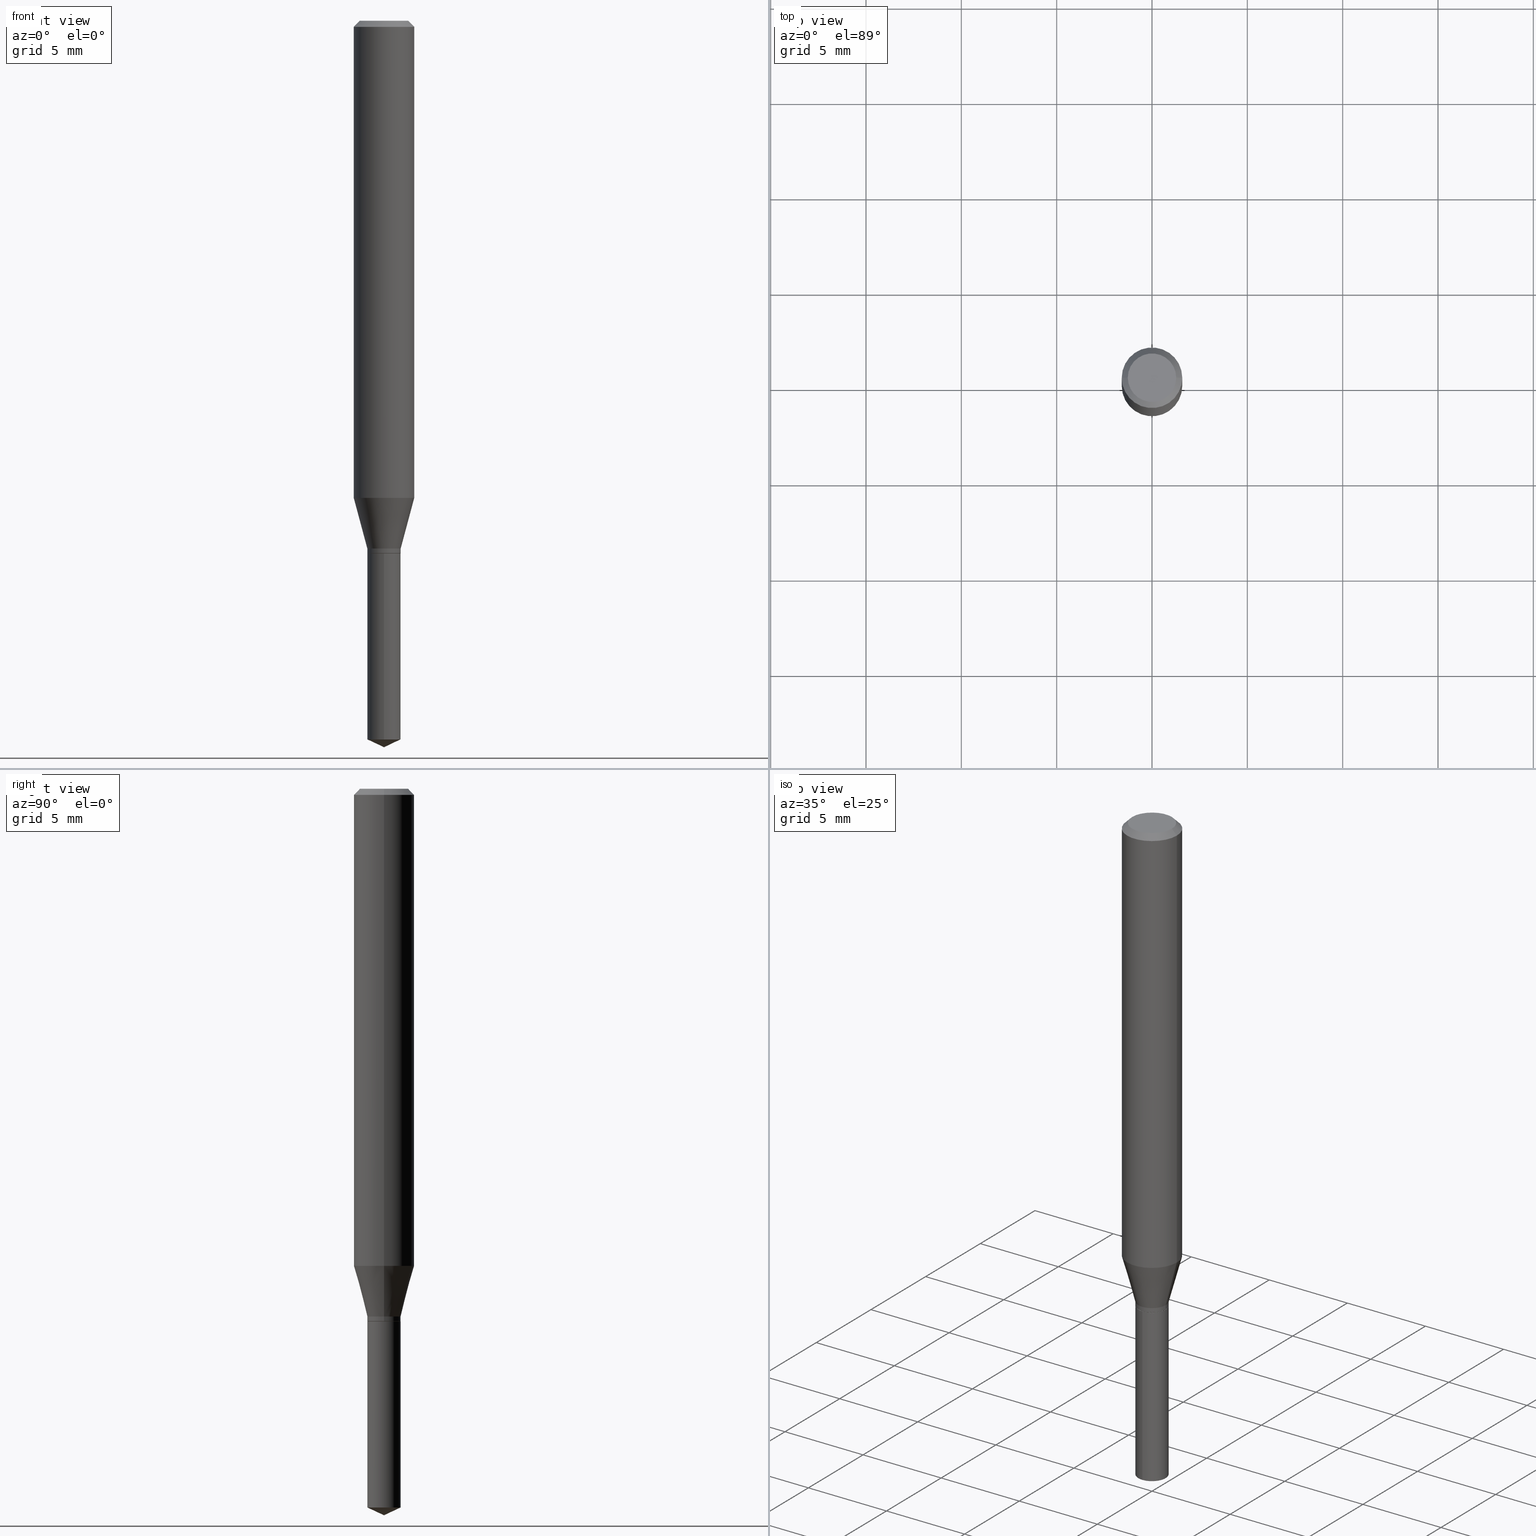
[diagram: canonical four-view strip — front | top / right | iso, engineering-drawing reading convention]
A machine part, canonical four-view strip (front | top / right | iso — engineering-drawing reading convention). The complete STEP part file that produces these views, byte-faithful:
ISO-10303-21;
HEADER;
FILE_DESCRIPTION (( 'STEP AP203' ),
    '1' );
FILE_NAME ('07179.STEP',
    '2024-04-23T19:54:12',
    ( '' ),
    ( '' ),
    'SwSTEP 2.0',
    'SolidWorks 2023',
    '' );
FILE_SCHEMA (( 'CONFIG_CONTROL_DESIGN' ));
ENDSEC;

DATA;
#1 = DIRECTION ( 'NONE',  ( 0.7071067811865263675, -2.468850131082035391E-15, 0.7071067811865686670 ) ) ;
#2 = ORIENTED_EDGE ( 'NONE', *, *, #166, .F. ) ;
#3 = DIRECTION ( 'NONE',  ( -2.445399690415121530E-29, 3.491580316559632610E-15, 1.000000000000000000 ) ) ;
#4 = DIRECTION ( 'NONE',  ( -6.982962677686265922E-15, -1.000000000000000000, 0.000000000000000000 ) ) ;
#5 = ORIENTED_EDGE ( 'NONE', *, *, #202, .T. ) ;
#6 = DIRECTION ( 'NONE',  ( 1.000000000000000000, -6.982962677686265922E-15, 4.875957971899673662E-29 ) ) ;
#7 = CARTESIAN_POINT ( 'NONE',  ( 0.04999999999999999584, -4.077247707424184212E-16, -1.592040838888913461E-18 ) ) ;
#8 = VERTEX_POINT ( 'NONE', #375 ) ;
#9 = PRODUCT_RELATED_PRODUCT_CATEGORY ( 'detail', '', ( #75 ) ) ;
#10 = AXIS2_PLACEMENT_3D ( 'NONE', #187, #108, #160 ) ;
#11 = DIRECTION ( 'NONE',  ( 0.000000000000000000, 0.000000000000000000, 1.000000000000000000 ) ) ;
#12 = ORIENTED_EDGE ( 'NONE', *, *, #351, .T. ) ;
#13 = CYLINDRICAL_SURFACE ( 'NONE', #172, 0.06250000000000005551 ) ;
#14 = VECTOR ( 'NONE', #380, 39.37007874015748854 ) ;
#15 = DIRECTION ( 'NONE',  ( 1.000000000000000000, -6.982962677686266711E-15, 0.000000000000000000 ) ) ;
#16 = UNCERTAINTY_MEASURE_WITH_UNIT (LENGTH_MEASURE( 1.000000000000000082E-05 ), #337, 'distance_accuracy_value', 'NONE');
#17 = DIRECTION ( 'NONE',  ( -2.445468806185136597E-29, 3.491481338843145583E-15, 1.000000000000000000 ) ) ;
#18 = PRODUCT_DEFINITION ( 'UNKNOWN', '', #490, #304 ) ;
#19 = DIRECTION ( 'NONE',  ( -6.982962677686265922E-15, -1.000000000000000000, 0.000000000000000000 ) ) ;
#20 = SHAPE_DEFINITION_REPRESENTATION ( #185, #88 ) ;
#21 = DIRECTION ( 'NONE',  ( -6.982962677686268288E-15, -1.000000000000000000, 3.520397390770421921E-15 ) ) ;
#22 = DIRECTION ( 'NONE',  ( -2.445399690415121530E-29, 3.491580316559632610E-15, 1.000000000000000000 ) ) ;
#23 = EDGE_CURVE ( 'NONE', #194, #234, #300, .T. ) ;
#24 = PERSON_AND_ORGANIZATION_ROLE ( 'classification_officer' ) ;
#25 = ORIENTED_EDGE ( 'NONE', *, *, #42, .T. ) ;
#26 = DIRECTION ( 'NONE',  ( 2.445399690415121250E-29, -3.491580316559632610E-15, -1.000000000000000000 ) ) ;
#27 = CC_DESIGN_DATE_AND_TIME_ASSIGNMENT ( #217, #432, ( #92 ) ) ;
#28 = PERSON_AND_ORGANIZATION_ROLE ( 'design_supplier' ) ;
#29 = VERTEX_POINT ( 'NONE', #112 ) ;
#30 = DIRECTION ( 'NONE',  ( -2.438088387897960049E-29, 3.491481338843145188E-15, 1.000000000000000000 ) ) ;
#31 = APPROVAL_ROLE ( '' ) ;
#32 = VECTOR ( 'NONE', #1, 39.37007874015748143 ) ;
#33 = LOCAL_TIME ( 15, 54, 12.00000000000000000, #146 ) ;
#34 = DIRECTION ( 'NONE',  ( -2.445468806185136597E-29, 3.491481338843145583E-15, 1.000000000000000000 ) ) ;
#35 = EDGE_CURVE ( 'NONE', #484, #291, #358, .T. ) ;
#36 = DIRECTION ( 'NONE',  ( -2.445468806185136597E-29, 3.491481338843145583E-15, 1.000000000000000000 ) ) ;
#37 = ORIENTED_EDGE ( 'NONE', *, *, #202, .F. ) ;
#38 = ORIENTED_EDGE ( 'NONE', *, *, #435, .F. ) ;
#39 = AXIS2_PLACEMENT_3D ( 'NONE', #426, #195, #425 ) ;
#40 = AXIS2_PLACEMENT_3D ( 'NONE', #249, #220, #174 ) ;
#41 = DIRECTION ( 'NONE',  ( 0.7071067811865453523, -7.319954787623248157E-15, -0.7071067811865496822 ) ) ;
#42 = EDGE_CURVE ( 'NONE', #74, #85, #152, .T. ) ;
#43 = ORIENTED_EDGE ( 'NONE', *, *, #130, .T. ) ;
#44 = CARTESIAN_POINT ( 'NONE',  ( 2.690015686803650369E-29, -3.840629472727460101E-15, -1.100000000000000089 ) ) ;
#45 = LINE ( 'NONE', #123, #421 ) ;
#46 = EDGE_LOOP ( 'NONE', ( #285, #379, #361, #183 ) ) ;
#47 = MANIFOLD_SOLID_BREP ( 'Body-Move/Copy2[2]', #335 ) ;
#48 = LINE ( 'NONE', #90, #14 ) ;
#49 = DIRECTION ( 'NONE',  ( 1.000000000000000000, 0.000000000000000000, 0.000000000000000000 ) ) ;
#50 = ORIENTED_EDGE ( 'NONE', *, *, #430, .F. ) ;
#51 = VECTOR ( 'NONE', #338, 39.37007874015748143 ) ;
#52 = AXIS2_PLACEMENT_3D ( 'NONE', #436, #178, #290 ) ;
#53 = EDGE_CURVE ( 'NONE', #69, #199, #396, .T. ) ;
#54 = DIRECTION ( 'NONE',  ( 1.000000000000000000, -6.982962677686267499E-15, 4.876176775795936353E-29 ) ) ;
#55 = AXIS2_PLACEMENT_3D ( 'NONE', #66, #433, #431 ) ;
#56 = CARTESIAN_POINT ( 'NONE',  ( 3.668099535622682715E-29, -5.237370474839449507E-15, -1.500000000000000222 ) ) ;
#57 = FACE_OUTER_BOUND ( 'NONE', #306, .T. ) ;
#58 = COORDINATED_UNIVERSAL_TIME_OFFSET ( 5, 0, .BEHIND. ) ;
#59 = CARTESIAN_POINT ( 'NONE',  ( 3.628891931600123606E-29, -5.181171809780059473E-15, -1.483935701176560595 ) ) ;
#60 = CALENDAR_DATE ( 2024, 23, 4 ) ;
#61 = EDGE_CURVE ( 'NONE', #234, #29, #84, .T. ) ;
#62 = DIRECTION ( 'NONE',  ( -6.982962677686265922E-15, -1.000000000000000000, 3.964946289788480896E-15 ) ) ;
#63 = LOCAL_TIME ( 15, 54, 12.00000000000000000, #357 ) ;
#64 = CARTESIAN_POINT ( 'NONE',  ( 2.688792952400557567E-29, -3.838883732058038598E-15, -1.099499999999999922 ) ) ;
#65 = PERSON_AND_ORGANIZATION ( #227, #215 ) ;
#66 = CARTESIAN_POINT ( 'NONE',  ( 2.690015686803650369E-29, -3.840629472727460101E-15, -1.100000000000000089 ) ) ;
#67 = PERSON_AND_ORGANIZATION_ROLE ( 'design_owner' ) ;
#68 = EDGE_LOOP ( 'NONE', ( #348, #323, #272, #254 ) ) ;
#69 = VERTEX_POINT ( 'NONE', #165 ) ;
#70 = CARTESIAN_POINT ( 'NONE',  ( 3.893286209682126177E-47, -5.558580879666067980E-33, -1.592040838891559689E-18 ) ) ;
#71 = ADVANCED_FACE ( 'NONE', ( #452 ), #98, .T. ) ;
#72 = AXIS2_PLACEMENT_3D ( 'NONE', #193, #76, #340 ) ;
#73 = CARTESIAN_POINT ( 'NONE',  ( -0.06250000000000012490, -2.995075684793045236E-15, -0.9850159748476928767 ) ) ;
#74 = VERTEX_POINT ( 'NONE', #342 ) ;
#75 = PRODUCT ( '07179', '07179', '', ( #310 ) ) ;
#76 = DIRECTION ( 'NONE',  ( 2.445468806185136597E-29, -3.491481338843145583E-15, -1.000000000000000000 ) ) ;
#77 = ORIENTED_EDGE ( 'NONE', *, *, #125, .F. ) ;
#78 = ADVANCED_FACE ( 'NONE', ( #314 ), #143, .T. ) ;
#79 = CARTESIAN_POINT ( 'NONE',  ( 0.03394999999999999407, -4.077701055634908964E-15, -1.100000000000000089 ) ) ;
#80 = EDGE_LOOP ( 'NONE', ( #164, #451, #471, #224 ) ) ;
#81 = DIRECTION ( 'NONE',  ( 1.000000000000000000, -6.982962677686265922E-15, 0.000000000000000000 ) ) ;
#82 = AXIS2_PLACEMENT_3D ( 'NONE', #216, #134, #292 ) ;
#83 = ORIENTED_EDGE ( 'NONE', *, *, #393, .T. ) ;
#84 = LINE ( 'NONE', #159, #460 ) ;
#85 = VERTEX_POINT ( 'NONE', #417 ) ;
#86 = ADVANCED_FACE ( 'NONE', ( #197 ), #265, .T. ) ;
#87 = DIRECTION ( 'NONE',  ( -2.445468806185136597E-29, 3.491481338843145583E-15, 1.000000000000000000 ) ) ;
#88 = ADVANCED_BREP_SHAPE_REPRESENTATION ( '07179', ( #209, #47, #398 ), #275 ) ;
#89 = ADVANCED_FACE ( 'NONE', ( #121 ), #167, .T. ) ;
#90 = CARTESIAN_POINT ( 'NONE',  ( -0.03445000000000000145, -3.559885242468021174E-15, -1.089700000000000113 ) ) ;
#91 = CIRCLE ( 'NONE', #467, 0.03445000000000000145 ) ;
#92 = SECURITY_CLASSIFICATION ( '', '', #363 ) ;
#93 = CARTESIAN_POINT ( 'NONE',  ( 2.664827358099943591E-29, -3.804667214937376339E-15, -1.089700000000000113 ) ) ;
#94 = DIRECTION ( 'NONE',  ( -6.328713451373385156E-15, -0.9063077870366507138, 0.4226182617406979425 ) ) ;
#95 = FACE_OUTER_BOUND ( 'NONE', #155, .T. ) ;
#96 = APPROVAL_DATE_TIME ( #325, #418 ) ;
#97 = ORIENTED_EDGE ( 'NONE', *, *, #225, .T. ) ;
#98 = CONICAL_SURFACE ( 'NONE', #288, 0.06250000000000000000, 0.7853981633974452814 ) ;
#99 = CARTESIAN_POINT ( 'NONE',  ( 2.447819724693908613E-16, 0.03444999999999483198, -1.483935701176560595 ) ) ;
#100 = AXIS2_PLACEMENT_3D ( 'NONE', #253, #30, #400 ) ;
#101 = PERSON_AND_ORGANIZATION ( #227, #215 ) ;
#102 = EDGE_LOOP ( 'NONE', ( #192, #266, #230 ) ) ;
#103 = CARTESIAN_POINT ( 'NONE',  ( 2.690015686803650369E-29, -3.840629472727460101E-15, -1.100000000000000089 ) ) ;
#104 = CALENDAR_DATE ( 2024, 23, 4 ) ;
#105 = CARTESIAN_POINT ( 'NONE',  ( -0.04999999999999999584, 3.709698922520826725E-16, -1.592040838894077649E-18 ) ) ;
#106 = CC_DESIGN_PERSON_AND_ORGANIZATION_ASSIGNMENT ( #65, #67, ( #75 ) ) ;
#107 = ORIENTED_EDGE ( 'NONE', *, *, #153, .F. ) ;
#108 = DIRECTION ( 'NONE',  ( -2.445468806185136597E-29, 3.491481338843145583E-15, 1.000000000000000000 ) ) ;
#109 = CIRCLE ( 'NONE', #240, 0.03445000000000000145 ) ;
#110 = LOCAL_TIME ( 15, 54, 12.00000000000000000, #395 ) ;
#111 = CARTESIAN_POINT ( 'NONE',  ( 3.056836007731440977E-31, -4.364351673553961068E-17, -0.01250000000000008223 ) ) ;
#112 = CARTESIAN_POINT ( 'NONE',  ( 2.447819724693909106E-16, 0.03444999999999616425, -1.100000000000000089 ) ) ;
#113 = EDGE_CURVE ( 'NONE', #294, #140, #235, .T. ) ;
#114 =( NAMED_UNIT ( * ) PLANE_ANGLE_UNIT ( ) SI_UNIT ( $, .RADIAN. ) );
#115 = ORIENTED_EDGE ( 'NONE', *, *, #173, .T. ) ;
#116 = DIRECTION ( 'NONE',  ( -1.000000000000000000, 6.982962677686266711E-15, 0.000000000000000000 ) ) ;
#117 = CC_DESIGN_PERSON_AND_ORGANIZATION_ASSIGNMENT ( #101, #282, ( #490 ) ) ;
#118 = CYLINDRICAL_SURFACE ( 'NONE', #10, 0.06250000000000005551 ) ;
#119 = ORIENTED_EDGE ( 'NONE', *, *, #42, .F. ) ;
#120 = VECTOR ( 'NONE', #132, 39.37007874015748143 ) ;
#121 = FACE_OUTER_BOUND ( 'NONE', #102, .T. ) ;
#122 = AXIS2_PLACEMENT_3D ( 'NONE', #299, #221, #223 ) ;
#123 = CARTESIAN_POINT ( 'NONE',  ( 0.06250000000000000000, -4.724246415962602840E-16, -0.01250000000000008223 ) ) ;
#124 = ORIENTED_EDGE ( 'NONE', *, *, #386, .F. ) ;
#125 = EDGE_CURVE ( 'NONE', #158, #8, #313, .T. ) ;
#126 = ORIENTED_EDGE ( 'NONE', *, *, #173, .F. ) ;
#127 = AXIS2_PLACEMENT_3D ( 'NONE', #93, #17, #276 ) ;
#128 = VECTOR ( 'NONE', #429, 39.37007874015748143 ) ;
#129 = LINE ( 'NONE', #241, #145 ) ;
#130 = EDGE_CURVE ( 'NONE', #85, #372, #48, .T. ) ;
#131 = DIRECTION ( 'NONE',  ( -2.445468806185136877E-29, 3.491481338843145188E-15, 1.000000000000000000 ) ) ;
#132 = DIRECTION ( 'NONE',  ( -2.445399690415121810E-29, 3.491580316559632610E-15, 1.000000000000000000 ) ) ;
#133 = APPROVAL_PERSON_ORGANIZATION ( #365, #244, #31 ) ;
#134 = DIRECTION ( 'NONE',  ( -2.445468806185136597E-29, 3.491481338843145583E-15, 1.000000000000000000 ) ) ;
#135 = COORDINATED_UNIVERSAL_TIME_OFFSET ( 5, 0, .BEHIND. ) ;
#136 = DIRECTION ( 'NONE',  ( -2.445399690415121530E-29, 3.491580316559632610E-15, 1.000000000000000000 ) ) ;
#137 = PERSON_AND_ORGANIZATION ( #227, #215 ) ;
#138 = CARTESIAN_POINT ( 'NONE',  ( 0.06250000000000005551, -4.364351673553921131E-16, 3.047610484872463023E-30 ) ) ;
#139 = APPROVAL_ROLE ( '' ) ;
#140 = VERTEX_POINT ( 'NONE', #279 ) ;
#141 = CC_DESIGN_PERSON_AND_ORGANIZATION_ASSIGNMENT ( #219, #28, ( #490 ) ) ;
#142 = ORIENTED_EDGE ( 'NONE', *, *, #113, .T. ) ;
#143 = CONICAL_SURFACE ( 'NONE', #413, 0.03394999999999999407, 0.7853981633974184140 ) ;
#144 = FACE_OUTER_BOUND ( 'NONE', #411, .T. ) ;
#145 = VECTOR ( 'NONE', #156, 39.37007874015748143 ) ;
#146 = COORDINATED_UNIVERSAL_TIME_OFFSET ( 5, 0, .BEHIND. ) ;
#147 = EDGE_LOOP ( 'NONE', ( #416, #161, #97, #309 ) ) ;
#148 = ADVANCED_FACE ( 'NONE', ( #57 ), #13, .T. ) ;
#149 = CYLINDRICAL_SURFACE ( 'NONE', #336, 0.03445000000000000145 ) ;
#150 = FACE_OUTER_BOUND ( 'NONE', #457, .T. ) ;
#151 = DIRECTION ( 'NONE',  ( -2.445468806185136597E-29, 3.491481338843145583E-15, 1.000000000000000000 ) ) ;
#152 = CIRCLE ( 'NONE', #127, 0.03445000000000000145 ) ;
#153 = EDGE_CURVE ( 'NONE', #158, #74, #129, .T. ) ;
#154 = ORIENTED_EDGE ( 'NONE', *, *, #459, .F. ) ;
#155 = EDGE_LOOP ( 'NONE', ( #258, #12, #142, #367 ) ) ;
#156 = DIRECTION ( 'NONE',  ( -2.445468806185136877E-29, 3.491481338843145188E-15, 1.000000000000000000 ) ) ;
#157 = DIRECTION ( 'NONE',  ( 0.2588190451025212391, 1.565188264969622362E-15, 0.9659258262890679791 ) ) ;
#158 = VERTEX_POINT ( 'NONE', #302 ) ;
#159 = CARTESIAN_POINT ( 'NONE',  ( 2.447819724693813949E-16, 0.03444999999999616425, -1.100000000000000089 ) ) ;
#160 = DIRECTION ( 'NONE',  ( 1.000000000000000000, -6.982962677686267499E-15, 4.876176775795936353E-29 ) ) ;
#161 = ORIENTED_EDGE ( 'NONE', *, *, #401, .F. ) ;
#162 = CIRCLE ( 'NONE', #397, 0.03445000000000000145 ) ;
#163 = APPLICATION_PROTOCOL_DEFINITION ( 'international standard', 'config_control_design', 1994, #269 ) ;
#164 = ORIENTED_EDGE ( 'NONE', *, *, #130, .F. ) ;
#165 = CARTESIAN_POINT ( 'NONE',  ( 0.06250000000000000000, -4.800786840909312308E-16, -0.01250000000000008223 ) ) ;
#166 = EDGE_CURVE ( 'NONE', #384, #372, #427, .T. ) ;
#167 = CONICAL_SURFACE ( 'NONE', #318, 84.42940631927510253, 1.134464013796319337 ) ;
#168 = LOCAL_TIME ( 15, 54, 12.00000000000000000, #135 ) ;
#169 = CYLINDRICAL_SURFACE ( 'NONE', #434, 0.03445000000000000145 ) ;
#170 = CARTESIAN_POINT ( 'NONE',  ( 2.690015686803650369E-29, -3.840629472727460101E-15, -1.100000000000000089 ) ) ;
#171 = FACE_OUTER_BOUND ( 'NONE', #448, .T. ) ;
#172 = AXIS2_PLACEMENT_3D ( 'NONE', #312, #462, #54 ) ;
#173 = EDGE_CURVE ( 'NONE', #372, #199, #388, .T. ) ;
#174 = DIRECTION ( 'NONE',  ( -1.000000000000000000, 6.982962677686265922E-15, -4.876176775795935793E-29 ) ) ;
#175 = ORIENTED_EDGE ( 'NONE', *, *, #35, .T. ) ;
#176 = DIRECTION ( 'NONE',  ( 6.982962677686265922E-15, 1.000000000000000000, -3.491580316559632610E-15 ) ) ;
#177 = DATE_TIME_ROLE ( 'creation_date' ) ;
#178 = DIRECTION ( 'NONE',  ( -2.445468806185136597E-29, 3.491481338843145583E-15, 1.000000000000000000 ) ) ;
#179 = CALENDAR_DATE ( 2024, 23, 4 ) ;
#180 = CARTESIAN_POINT ( 'NONE',  ( -2.405630642462556803E-16, -0.03445000000000519175, -1.483935701176560595 ) ) ;
#181 = AXIS2_PLACEMENT_3D ( 'NONE', #111, #36, #441 ) ;
#182 = CALENDAR_DATE ( 2024, 23, 4 ) ;
#183 = ORIENTED_EDGE ( 'NONE', *, *, #257, .F. ) ;
#184 = CARTESIAN_POINT ( 'NONE',  ( 0.03445000000000000145, -4.045230279183668208E-15, -1.089700000000000113 ) ) ;
#185 = PRODUCT_DEFINITION_SHAPE ( 'NONE', 'NONE',  #18 ) ;
#186 = ORIENTED_EDGE ( 'NONE', *, *, #198, .T. ) ;
#187 = CARTESIAN_POINT ( 'NONE',  ( 0.000000000000000000, 0.000000000000000000, 0.000000000000000000 ) ) ;
#188 = ORIENTED_EDGE ( 'NONE', *, *, #125, .T. ) ;
#189 = LENGTH_MEASURE_WITH_UNIT ( LENGTH_MEASURE( 0.02539999999999999897 ), #374 );
#190 = ADVANCED_FACE ( 'NONE', ( #350 ), #169, .T. ) ;
#191 = VECTOR ( 'NONE', #316, 39.37007874015748143 ) ;
#192 = ORIENTED_EDGE ( 'NONE', *, *, #23, .F. ) ;
#193 = CARTESIAN_POINT ( 'NONE',  ( 3.056836007731440977E-31, -4.364351673553961068E-17, -0.01250000000000008223 ) ) ;
#194 = VERTEX_POINT ( 'NONE', #56 ) ;
#195 = DIRECTION ( 'NONE',  ( -2.445468806185136597E-29, 3.491481338843145583E-15, 1.000000000000000000 ) ) ;
#196 = ORIENTED_EDGE ( 'NONE', *, *, #349, .F. ) ;
#197 = FACE_OUTER_BOUND ( 'NONE', #478, .T. ) ;
#198 = EDGE_CURVE ( 'NONE', #8, #85, #207, .T. ) ;
#199 = VERTEX_POINT ( 'NONE', #390 ) ;
#200 = CONICAL_SURFACE ( 'NONE', #461, 84.42940631927510253, 1.134464013796319337 ) ;
#201 = CC_DESIGN_APPROVAL ( #271, ( #92 ) ) ;
#202 = EDGE_CURVE ( 'NONE', #384, #69, #356, .T. ) ;
#203 = CARTESIAN_POINT ( 'NONE',  ( -0.06250000000000005551, 4.440892098500630106E-16, -3.074334431409318916E-30 ) ) ;
#204 = AXIS2_PLACEMENT_3D ( 'NONE', #408, #260, #6 ) ;
#205 = VECTOR ( 'NONE', #94, 39.37007874015748143 ) ;
#206 = CONICAL_SURFACE ( 'NONE', #72, 0.06250000000000000000, 0.7853981633974452814 ) ;
#207 = LINE ( 'NONE', #353, #191 ) ;
#208 = DIRECTION ( 'NONE',  ( -2.445399690415121530E-29, 3.491580316559632610E-15, 1.000000000000000000 ) ) ;
#209 = MANIFOLD_SOLID_BREP ( 'Body-Move/Copy2[1]', #420 ) ;
#210 = DATE_AND_TIME ( #182, #110 ) ;
#211 = EDGE_CURVE ( 'NONE', #29, #140, #346, .T. ) ;
#212 = DIRECTION ( 'NONE',  ( -6.982962677686265922E-15, -1.000000000000000000, 3.964946289788480896E-15 ) ) ;
#213 = APPLICATION_PROTOCOL_DEFINITION ( 'international standard', 'config_control_design', 1994, #409 ) ;
#214 = VECTOR ( 'NONE', #131, 39.37007874015748143 ) ;
#215 = ORGANIZATION ( 'UNSPECIFIED', 'UNSPECIFIED', '' ) ;
#216 = CARTESIAN_POINT ( 'NONE',  ( 2.664827358099943591E-29, -3.804667214937376339E-15, -1.089700000000000113 ) ) ;
#217 = DATE_AND_TIME ( #60, #63 ) ;
#218 = FACE_OUTER_BOUND ( 'NONE', #301, .T. ) ;
#219 = PERSON_AND_ORGANIZATION ( #227, #215 ) ;
#220 = DIRECTION ( 'NONE',  ( 2.438088387897960049E-29, -3.491481338843145188E-15, -1.000000000000000000 ) ) ;
#221 = DIRECTION ( 'NONE',  ( -2.445468806185136597E-29, 3.491481338843145583E-15, 1.000000000000000000 ) ) ;
#222 = ORIENTED_EDGE ( 'NONE', *, *, #401, .T. ) ;
#223 = DIRECTION ( 'NONE',  ( 1.000000000000000000, -6.982962677686265922E-15, 0.000000000000000000 ) ) ;
#224 = ORIENTED_EDGE ( 'NONE', *, *, #393, .F. ) ;
#225 = EDGE_CURVE ( 'NONE', #291, #199, #392, .T. ) ;
#226 = ORIENTED_EDGE ( 'NONE', *, *, #435, .T. ) ;
#227 = PERSON ( 'UNSPECIFIED', 'UNSPECIFIED', 'UNSPECIFIED', ('UNSPECIFIED'), ('UNSPECIFIED'), ('UNSPECIFIED') ) ;
#228 = DIRECTION ( 'NONE',  ( 1.000000000000000000, -6.982962677686266711E-15, 0.000000000000000000 ) ) ;
#229 = AXIS2_PLACEMENT_3D ( 'NONE', #70, #34, #296 ) ;
#230 = ORIENTED_EDGE ( 'NONE', *, *, #351, .F. ) ;
#231 = CARTESIAN_POINT ( 'NONE',  ( -2.405630642462649987E-16, -0.03445000000000384560, -1.099999999999999867 ) ) ;
#232 =( NAMED_UNIT ( * ) SI_UNIT ( $, .STERADIAN. ) SOLID_ANGLE_UNIT ( ) );
#233 = ADVANCED_FACE ( 'NONE', ( #245 ), #200, .T. ) ;
#234 = VERTEX_POINT ( 'NONE', #99 ) ;
#235 = LINE ( 'NONE', #231, #120 ) ;
#236 = VERTEX_POINT ( 'NONE', #243 ) ;
#237 = ADVANCED_FACE ( 'NONE', ( #95 ), #469, .T. ) ;
#238 = CARTESIAN_POINT ( 'NONE',  ( -9.260740279983036507E-28, 1.322265303911854087E-13, 37.87007874015748143 ) ) ;
#239 = DIRECTION ( 'NONE',  ( 1.000000000000000000, -6.982962677686267499E-15, 4.876176775795935793E-29 ) ) ;
#240 = AXIS2_PLACEMENT_3D ( 'NONE', #59, #208, #19 ) ;
#241 = CARTESIAN_POINT ( 'NONE',  ( 0.03445000000000000145, -2.405630642462919185E-16, 1.679842899261699984E-30 ) ) ;
#242 = CC_DESIGN_DATE_AND_TIME_ASSIGNMENT ( #246, #177, ( #18 ) ) ;
#243 = CARTESIAN_POINT ( 'NONE',  ( -0.03394999999999999407, -3.596750986762795422E-15, -1.100000000000000089 ) ) ;
#244 = APPROVAL ( #437, 'UNSPECIFIED' ) ;
#245 = FACE_OUTER_BOUND ( 'NONE', #458, .T. ) ;
#246 = DATE_AND_TIME ( #104, #168 ) ;
#247 = ADVANCED_FACE ( 'NONE', ( #144 ), #283, .F. ) ;
#248 = CIRCLE ( 'NONE', #376, 0.06250000000000012490 ) ;
#249 = CARTESIAN_POINT ( 'NONE',  ( 1.946643104841063088E-47, -2.779290439833033990E-33, -7.960204194457798443E-19 ) ) ;
#250 = LINE ( 'NONE', #317, #205 ) ;
#251 = APPROVAL_DATE_TIME ( #210, #244 ) ;
#252 = ORIENTED_EDGE ( 'NONE', *, *, #113, .F. ) ;
#253 = CARTESIAN_POINT ( 'NONE',  ( 2.690015686803650369E-29, -3.840629472727460101E-15, -1.100000000000000089 ) ) ;
#254 = ORIENTED_EDGE ( 'NONE', *, *, #315, .F. ) ;
#255 = CIRCLE ( 'NONE', #359, 0.03394999999999999407 ) ;
#256 = FACE_OUTER_BOUND ( 'NONE', #147, .T. ) ;
#257 = EDGE_CURVE ( 'NONE', #8, #158, #162, .T. ) ;
#258 = ORIENTED_EDGE ( 'NONE', *, *, #61, .F. ) ;
#259 = CYLINDRICAL_SURFACE ( 'NONE', #280, 0.03445000000000000145 ) ;
#260 = DIRECTION ( 'NONE',  ( -2.445468806185136597E-29, 3.491481338843145583E-15, 1.000000000000000000 ) ) ;
#261 = CC_DESIGN_PERSON_AND_ORGANIZATION_ASSIGNMENT ( #477, #24, ( #92 ) ) ;
#262 = ORIENTED_EDGE ( 'NONE', *, *, #35, .F. ) ;
#263 = DIRECTION ( 'NONE',  ( 1.000000000000000000, -6.982962677686266711E-15, 0.000000000000000000 ) ) ;
#264 = ADVANCED_FACE ( 'NONE', ( #466 ), #405, .T. ) ;
#265 = CONICAL_SURFACE ( 'NONE', #326, 0.03394999999999999407, 0.7853981633974184140 ) ;
#266 = ORIENTED_EDGE ( 'NONE', *, *, #349, .T. ) ;
#267 = APPROVAL_PERSON_ORGANIZATION ( #137, #418, #439 ) ;
#268 = CARTESIAN_POINT ( 'NONE',  ( 3.056836007731440977E-31, -4.364351673553961068E-17, -0.01250000000000008223 ) ) ;
#269 = APPLICATION_CONTEXT ( 'configuration controlled 3d designs of mechanical parts and assemblies' ) ;
#270 = DIRECTION ( 'NONE',  ( 1.000000000000000000, -6.982962677686264344E-15, 0.000000000000000000 ) ) ;
#271 = APPROVAL ( #483, 'UNSPECIFIED' ) ;
#272 = ORIENTED_EDGE ( 'NONE', *, *, #153, .T. ) ;
#273 = ORIENTED_EDGE ( 'NONE', *, *, #474, .T. ) ;
#274 = EDGE_CURVE ( 'NONE', #140, #29, #91, .T. ) ;
#275 =( GEOMETRIC_REPRESENTATION_CONTEXT ( 3 ) GLOBAL_UNCERTAINTY_ASSIGNED_CONTEXT ( ( #16 ) ) GLOBAL_UNIT_ASSIGNED_CONTEXT ( ( #337, #114, #232 ) ) REPRESENTATION_CONTEXT ( 'NONE', 'WORKASPACE' ) );
#276 = DIRECTION ( 'NONE',  ( 1.000000000000000000, -6.982962677686265922E-15, 0.000000000000000000 ) ) ;
#277 = DIRECTION ( 'NONE',  ( -6.982962677686268288E-15, -1.000000000000000000, 3.520397390770421921E-15 ) ) ;
#278 = ADVANCED_FACE ( 'NONE', ( #218 ), #476, .F. ) ;
#279 = CARTESIAN_POINT ( 'NONE',  ( -2.405630642462649987E-16, -0.03445000000000384560, -1.099999999999999867 ) ) ;
#280 = AXIS2_PLACEMENT_3D ( 'NONE', #407, #343, #370 ) ;
#281 = CARTESIAN_POINT ( 'NONE',  ( 2.690015686803650369E-29, -3.840629472727460101E-15, -1.100000000000000089 ) ) ;
#282 = PERSON_AND_ORGANIZATION_ROLE ( 'creator' ) ;
#283 = PLANE ( 'NONE',  #40 ) ;
#284 = PERSON_AND_ORGANIZATION ( #227, #215 ) ;
#285 = ORIENTED_EDGE ( 'NONE', *, *, #474, .F. ) ;
#286 = ADVANCED_FACE ( 'NONE', ( #328 ), #472, .F. ) ;
#287 = DIRECTION ( 'NONE',  ( -2.445468806185136597E-29, 3.491481338843145583E-15, 1.000000000000000000 ) ) ;
#288 = AXIS2_PLACEMENT_3D ( 'NONE', #268, #464, #116 ) ;
#289 = AXIS2_PLACEMENT_3D ( 'NONE', #345, #382, #81 ) ;
#290 = DIRECTION ( 'NONE',  ( 1.000000000000000000, -6.982962677686265922E-15, 0.000000000000000000 ) ) ;
#291 = VERTEX_POINT ( 'NONE', #105 ) ;
#292 = DIRECTION ( 'NONE',  ( 1.000000000000000000, -6.982962677686265922E-15, 0.000000000000000000 ) ) ;
#293 = APPROVAL_STATUS ( 'not_yet_approved' ) ;
#294 = VERTEX_POINT ( 'NONE', #180 ) ;
#295 = ORIENTED_EDGE ( 'NONE', *, *, #366, .T. ) ;
#296 = DIRECTION ( 'NONE',  ( 1.000000000000000000, -6.982962677686265922E-15, 4.875957971899673662E-29 ) ) ;
#297 = ORIENTED_EDGE ( 'NONE', *, *, #166, .T. ) ;
#298 = AXIS2_PLACEMENT_3D ( 'NONE', #364, #26, #176 ) ;
#299 = CARTESIAN_POINT ( 'NONE',  ( 2.664827358099943591E-29, -3.804667214937376339E-15, -1.089700000000000113 ) ) ;
#300 = LINE ( 'NONE', #445, #51 ) ;
#301 = EDGE_LOOP ( 'NONE', ( #488, #480 ) ) ;
#302 = CARTESIAN_POINT ( 'NONE',  ( 0.03445000000000000145, -4.079446796304330467E-15, -1.099499999999999922 ) ) ;
#303 = EDGE_CURVE ( 'NONE', #442, #236, #255, .T. ) ;
#304 = DESIGN_CONTEXT ( 'detailed design', #409, 'design' ) ;
#305 = CARTESIAN_POINT ( 'NONE',  ( 2.408825840084076168E-29, -3.439164894643109430E-15, -0.9850159748476928767 ) ) ;
#306 = EDGE_LOOP ( 'NONE', ( #126, #83, #5, #50 ) ) ;
#307 = DIRECTION ( 'NONE',  ( -2.445468806185136597E-29, 3.491481338843145583E-15, 1.000000000000000000 ) ) ;
#308 = LINE ( 'NONE', #79, #32 ) ;
#309 = ORIENTED_EDGE ( 'NONE', *, *, #430, .T. ) ;
#310 = MECHANICAL_CONTEXT ( 'NONE', #269, 'mechanical' ) ;
#311 = ORIENTED_EDGE ( 'NONE', *, *, #53, .T. ) ;
#312 = CARTESIAN_POINT ( 'NONE',  ( 0.000000000000000000, 0.000000000000000000, 0.000000000000000000 ) ) ;
#313 = CIRCLE ( 'NONE', #289, 0.03445000000000000145 ) ;
#314 = FACE_OUTER_BOUND ( 'NONE', #46, .T. ) ;
#315 = EDGE_CURVE ( 'NONE', #85, #74, #414, .T. ) ;
#316 = DIRECTION ( 'NONE',  ( -2.445468806185136877E-29, 3.491481338843145188E-15, 1.000000000000000000 ) ) ;
#317 = CARTESIAN_POINT ( 'NONE',  ( 3.668099535622682155E-29, -5.237370474839448718E-15, -1.500000000000000222 ) ) ;
#318 = AXIS2_PLACEMENT_3D ( 'NONE', #238, #3, #277 ) ;
#319 = CARTESIAN_POINT ( 'NONE',  ( -0.06250000000000000000, 3.927916506198521080E-16, -0.01250000000000008223 ) ) ;
#320 = ADVANCED_FACE ( 'NONE', ( #171 ), #149, .T. ) ;
#321 = PERSON_AND_ORGANIZATION ( #227, #215 ) ;
#322 = DIRECTION ( 'NONE',  ( -2.445468806185136597E-29, 3.491481338843145583E-15, 1.000000000000000000 ) ) ;
#323 = ORIENTED_EDGE ( 'NONE', *, *, #257, .T. ) ;
#324 = CARTESIAN_POINT ( 'NONE',  ( -9.260740279983036507E-28, 1.322265303911854087E-13, 37.87007874015748143 ) ) ;
#325 = DATE_AND_TIME ( #179, #378 ) ;
#326 = AXIS2_PLACEMENT_3D ( 'NONE', #44, #307, #15 ) ;
#327 = CIRCLE ( 'NONE', #181, 0.06250000000000000000 ) ;
#328 = FACE_OUTER_BOUND ( 'NONE', #404, .T. ) ;
#329 = ORIENTED_EDGE ( 'NONE', *, *, #303, .T. ) ;
#330 = CC_DESIGN_PERSON_AND_ORGANIZATION_ASSIGNMENT ( #321, #391, ( #18 ) ) ;
#331 = CARTESIAN_POINT ( 'NONE',  ( 0.06250000000000012490, -3.875600061998501888E-15, -0.9850159748476928767 ) ) ;
#332 = EDGE_LOOP ( 'NONE', ( #262, #295, #311, #341 ) ) ;
#333 = LINE ( 'NONE', #485, #385 ) ;
#334 = ORIENTED_EDGE ( 'NONE', *, *, #61, .T. ) ;
#335 = CLOSED_SHELL ( 'NONE', ( #86, #71, #487, #423, #190, #446, #264, #148, #454, #247, #286, #78 ) ) ;
#336 = AXIS2_PLACEMENT_3D ( 'NONE', #103, #403, #212 ) ;
#337 =( CONVERSION_BASED_UNIT ( 'INCH', #189 ) LENGTH_UNIT ( ) NAMED_UNIT ( #465 ) );
#338 = DIRECTION ( 'NONE',  ( 6.439704144417040608E-15, 0.9063077870366536004, 0.4226182617406916142 ) ) ;
#339 = CARTESIAN_POINT ( 'NONE',  ( 0.000000000000000000, 0.000000000000000000, 0.000000000000000000 ) ) ;
#340 = DIRECTION ( 'NONE',  ( -1.000000000000000000, 6.982962677686266711E-15, 0.000000000000000000 ) ) ;
#341 = ORIENTED_EDGE ( 'NONE', *, *, #225, .F. ) ;
#342 = CARTESIAN_POINT ( 'NONE',  ( 0.03445000000000000145, -4.045230279183668208E-15, -1.089700000000000113 ) ) ;
#343 = DIRECTION ( 'NONE',  ( -2.445468806185136597E-29, 3.491481338843145583E-15, 1.000000000000000000 ) ) ;
#344 = EDGE_LOOP ( 'NONE', ( #297, #115, #381, #37 ) ) ;
#345 = CARTESIAN_POINT ( 'NONE',  ( 2.688792952400557567E-29, -3.838883732058038598E-15, -1.099499999999999922 ) ) ;
#346 = CIRCLE ( 'NONE', #55, 0.03445000000000000145 ) ;
#347 = APPROVAL_PERSON_ORGANIZATION ( #284, #271, #139 ) ;
#348 = ORIENTED_EDGE ( 'NONE', *, *, #198, .F. ) ;
#349 = EDGE_CURVE ( 'NONE', #194, #294, #250, .T. ) ;
#350 = FACE_OUTER_BOUND ( 'NONE', #440, .T. ) ;
#351 = EDGE_CURVE ( 'NONE', #234, #294, #109, .T. ) ;
#352 = CONICAL_SURFACE ( 'NONE', #122, 0.03445000000000000145, 0.2617993877991499629 ) ;
#353 = CARTESIAN_POINT ( 'NONE',  ( -0.03445000000000000145, 2.447819724693545244E-16, -1.694573138592815008E-30 ) ) ;
#354 = DIRECTION ( 'NONE',  ( -2.445399690415121530E-29, 3.491580316559632610E-15, 1.000000000000000000 ) ) ;
#355 = APPROVAL_DATE_TIME ( #402, #271 ) ;
#356 = LINE ( 'NONE', #138, #128 ) ;
#357 = COORDINATED_UNIVERSAL_TIME_OFFSET ( 5, 0, .BEHIND. ) ;
#358 = CIRCLE ( 'NONE', #204, 0.04999999999999999584 ) ;
#359 = AXIS2_PLACEMENT_3D ( 'NONE', #281, #287, #362 ) ;
#360 = CARTESIAN_POINT ( 'NONE',  ( 2.690015686803650369E-29, -3.840629472727460101E-15, -1.100000000000000089 ) ) ;
#361 = ORIENTED_EDGE ( 'NONE', *, *, #373, .T. ) ;
#362 = DIRECTION ( 'NONE',  ( 1.000000000000000000, -6.982962677686266711E-15, 0.000000000000000000 ) ) ;
#363 = SECURITY_CLASSIFICATION_LEVEL ( 'unclassified' ) ;
#364 = CARTESIAN_POINT ( 'NONE',  ( 2.690015686803650369E-29, -3.840629472727460101E-15, -1.100000000000000089 ) ) ;
#365 = PERSON_AND_ORGANIZATION ( #227, #215 ) ;
#366 = EDGE_CURVE ( 'NONE', #484, #69, #45, .T. ) ;
#367 = ORIENTED_EDGE ( 'NONE', *, *, #211, .F. ) ;
#368 = CIRCLE ( 'NONE', #229, 0.04999999999999999584 ) ;
#369 = CARTESIAN_POINT ( 'NONE',  ( 0.03394999999999999407, -4.077701055634908964E-15, -1.100000000000000089 ) ) ;
#370 = DIRECTION ( 'NONE',  ( 1.000000000000000000, -6.982962677686267499E-15, 4.876176775795935793E-29 ) ) ;
#371 = ORIENTED_EDGE ( 'NONE', *, *, #303, .F. ) ;
#372 = VERTEX_POINT ( 'NONE', #73 ) ;
#373 = EDGE_CURVE ( 'NONE', #442, #158, #308, .T. ) ;
#374 =( LENGTH_UNIT ( ) NAMED_UNIT ( * ) SI_UNIT ( $, .METRE. ) );
#375 = CARTESIAN_POINT ( 'NONE',  ( -0.03445000000000000145, -3.576993501028352698E-15, -1.099499999999999922 ) ) ;
#376 = AXIS2_PLACEMENT_3D ( 'NONE', #305, #151, #270 ) ;
#377 = CARTESIAN_POINT ( 'NONE',  ( 2.690015686803650369E-29, -3.840629472727460101E-15, -1.100000000000000089 ) ) ;
#378 = LOCAL_TIME ( 15, 54, 12.00000000000000000, #58 ) ;
#379 = ORIENTED_EDGE ( 'NONE', *, *, #386, .T. ) ;
#380 = DIRECTION ( 'NONE',  ( -0.2588190451025212391, 5.211531920934549464E-15, 0.9659258262890679791 ) ) ;
#381 = ORIENTED_EDGE ( 'NONE', *, *, #53, .F. ) ;
#382 = DIRECTION ( 'NONE',  ( -2.445468806185136597E-29, 3.491481338843145583E-15, 1.000000000000000000 ) ) ;
#383 = CARTESIAN_POINT ( 'NONE',  ( 0.000000000000000000, 0.000000000000000000, 0.000000000000000000 ) ) ;
#384 = VERTEX_POINT ( 'NONE', #331 ) ;
#385 = VECTOR ( 'NONE', #447, 39.37007874015748143 ) ;
#386 = EDGE_CURVE ( 'NONE', #236, #442, #479, .T. ) ;
#387 = DIRECTION ( 'NONE',  ( 1.000000000000000000, -6.982962677686264344E-15, 0.000000000000000000 ) ) ;
#388 = LINE ( 'NONE', #203, #214 ) ;
#389 = AXIS2_PLACEMENT_3D ( 'NONE', #394, #136, #62 ) ;
#390 = CARTESIAN_POINT ( 'NONE',  ( -0.06250000000000000000, -1.297314995839260696E-15, -0.01250000000000008223 ) ) ;
#391 = PERSON_AND_ORGANIZATION_ROLE ( 'creator' ) ;
#392 = LINE ( 'NONE', #319, #453 ) ;
#393 = EDGE_CURVE ( 'NONE', #372, #384, #248, .T. ) ;
#394 = CARTESIAN_POINT ( 'NONE',  ( 2.690015686803650369E-29, -3.840629472727460101E-15, -1.100000000000000089 ) ) ;
#395 = COORDINATED_UNIVERSAL_TIME_OFFSET ( 5, 0, .BEHIND. ) ;
#396 = CIRCLE ( 'NONE', #39, 0.06250000000000000000 ) ;
#397 = AXIS2_PLACEMENT_3D ( 'NONE', #64, #322, #438 ) ;
#398 = AXIS2_PLACEMENT_3D ( 'NONE', #383, #11, #49 ) ;
#399 = DIRECTION ( 'NONE',  ( -0.7071067811865453523, 2.468850131082234184E-15, -0.7071067811865496822 ) ) ;
#400 = DIRECTION ( 'NONE',  ( 1.000000000000000000, -6.982962677686265922E-15, 4.876176775795935793E-29 ) ) ;
#401 = EDGE_CURVE ( 'NONE', #291, #484, #368, .T. ) ;
#402 = DATE_AND_TIME ( #470, #33 ) ;
#403 = DIRECTION ( 'NONE',  ( -2.445399690415121530E-29, 3.491580316559632610E-15, 1.000000000000000000 ) ) ;
#404 = EDGE_LOOP ( 'NONE', ( #371, #124 ) ) ;
#405 = CONICAL_SURFACE ( 'NONE', #82, 0.03445000000000000145, 0.2617993877991499629 ) ;
#406 = CC_DESIGN_APPROVAL ( #244, ( #490 ) ) ;
#407 = CARTESIAN_POINT ( 'NONE',  ( 0.000000000000000000, 0.000000000000000000, 0.000000000000000000 ) ) ;
#408 = CARTESIAN_POINT ( 'NONE',  ( 3.893286209682126177E-47, -5.558580879666067980E-33, -1.592040838891559689E-18 ) ) ;
#409 = APPLICATION_CONTEXT ( 'configuration controlled 3d designs of mechanical parts and assemblies' ) ;
#410 = CARTESIAN_POINT ( 'NONE',  ( 3.628891931600123606E-29, -5.181171809780059473E-15, -1.483935701176560595 ) ) ;
#411 = EDGE_LOOP ( 'NONE', ( #222, #175 ) ) ;
#412 = DIRECTION ( 'NONE',  ( -2.445468806185136597E-29, 3.491481338843145583E-15, 1.000000000000000000 ) ) ;
#413 = AXIS2_PLACEMENT_3D ( 'NONE', #170, #412, #263 ) ;
#414 = CIRCLE ( 'NONE', #52, 0.03445000000000000145 ) ;
#415 = DIRECTION ( 'NONE',  ( -2.445399690415121530E-29, 3.491580316559632610E-15, 1.000000000000000000 ) ) ;
#416 = ORIENTED_EDGE ( 'NONE', *, *, #366, .F. ) ;
#417 = CARTESIAN_POINT ( 'NONE',  ( -0.03445000000000000145, -3.576993501028352698E-15, -1.089700000000000113 ) ) ;
#418 = APPROVAL ( #293, 'UNSPECIFIED' ) ;
#419 = ORIENTED_EDGE ( 'NONE', *, *, #23, .T. ) ;
#420 = CLOSED_SHELL ( 'NONE', ( #320, #233, #89, #237, #278 ) ) ;
#421 = VECTOR ( 'NONE', #41, 39.37007874015748143 ) ;
#422 = AXIS2_PLACEMENT_3D ( 'NONE', #410, #415, #4 ) ;
#423 = ADVANCED_FACE ( 'NONE', ( #150 ), #352, .T. ) ;
#424 = CARTESIAN_POINT ( 'NONE',  ( 2.408825840084076168E-29, -3.439164894643109430E-15, -0.9850159748476928767 ) ) ;
#425 = DIRECTION ( 'NONE',  ( 1.000000000000000000, -6.982962677686266711E-15, 0.000000000000000000 ) ) ;
#426 = CARTESIAN_POINT ( 'NONE',  ( 3.056836007731440977E-31, -4.364351673553961068E-17, -0.01250000000000008223 ) ) ;
#427 = CIRCLE ( 'NONE', #443, 0.06250000000000012490 ) ;
#428 = CC_DESIGN_SECURITY_CLASSIFICATION ( #92, ( #490 ) ) ;
#429 = DIRECTION ( 'NONE',  ( -2.445468806185136877E-29, 3.491481338843145188E-15, 1.000000000000000000 ) ) ;
#430 = EDGE_CURVE ( 'NONE', #199, #69, #327, .T. ) ;
#431 = DIRECTION ( 'NONE',  ( -6.982962677686265922E-15, -1.000000000000000000, 3.964946289788480896E-15 ) ) ;
#432 = DATE_TIME_ROLE ( 'classification_date' ) ;
#433 = DIRECTION ( 'NONE',  ( -2.445399690415121530E-29, 3.491580316559632610E-15, 1.000000000000000000 ) ) ;
#434 = AXIS2_PLACEMENT_3D ( 'NONE', #339, #463, #239 ) ;
#435 = EDGE_CURVE ( 'NONE', #294, #234, #455, .T. ) ;
#436 = CARTESIAN_POINT ( 'NONE',  ( 2.664827358099943591E-29, -3.804667214937376339E-15, -1.089700000000000113 ) ) ;
#437 = APPROVAL_STATUS ( 'not_yet_approved' ) ;
#438 = DIRECTION ( 'NONE',  ( 1.000000000000000000, -6.982962677686265922E-15, 0.000000000000000000 ) ) ;
#439 = APPROVAL_ROLE ( '' ) ;
#440 = EDGE_LOOP ( 'NONE', ( #188, #186, #119, #107 ) ) ;
#441 = DIRECTION ( 'NONE',  ( 1.000000000000000000, -6.982962677686266711E-15, 0.000000000000000000 ) ) ;
#442 = VERTEX_POINT ( 'NONE', #369 ) ;
#443 = AXIS2_PLACEMENT_3D ( 'NONE', #424, #87, #387 ) ;
#444 = FACE_OUTER_BOUND ( 'NONE', #68, .T. ) ;
#445 = CARTESIAN_POINT ( 'NONE',  ( 3.668252923656895710E-29, -5.237152723863177100E-15, -1.500000000000000222 ) ) ;
#446 = ADVANCED_FACE ( 'NONE', ( #444 ), #259, .T. ) ;
#447 = DIRECTION ( 'NONE',  ( -0.7071067811865263675, 7.493145998870278430E-15, 0.7071067811865686670 ) ) ;
#448 = EDGE_LOOP ( 'NONE', ( #226, #334, #475, #252 ) ) ;
#449 = DIRECTION ( 'NONE',  ( -2.445399690415121810E-29, 3.491580316559632610E-15, 1.000000000000000000 ) ) ;
#450 = FACE_OUTER_BOUND ( 'NONE', #344, .T. ) ;
#451 = ORIENTED_EDGE ( 'NONE', *, *, #315, .T. ) ;
#452 = FACE_OUTER_BOUND ( 'NONE', #332, .T. ) ;
#453 = VECTOR ( 'NONE', #399, 39.37007874015748143 ) ;
#454 = ADVANCED_FACE ( 'NONE', ( #256 ), #206, .T. ) ;
#455 = CIRCLE ( 'NONE', #422, 0.03445000000000000145 ) ;
#456 = LINE ( 'NONE', #184, #468 ) ;
#457 = EDGE_LOOP ( 'NONE', ( #25, #43, #2, #154 ) ) ;
#458 = EDGE_LOOP ( 'NONE', ( #196, #419, #38 ) ) ;
#459 = EDGE_CURVE ( 'NONE', #74, #384, #456, .T. ) ;
#460 = VECTOR ( 'NONE', #449, 39.37007874015748143 ) ;
#461 = AXIS2_PLACEMENT_3D ( 'NONE', #324, #354, #21 ) ;
#462 = DIRECTION ( 'NONE',  ( -2.445468806185136597E-29, 3.491481338843145583E-15, 1.000000000000000000 ) ) ;
#463 = DIRECTION ( 'NONE',  ( -2.445468806185136597E-29, 3.491481338843145583E-15, 1.000000000000000000 ) ) ;
#464 = DIRECTION ( 'NONE',  ( 2.445468806185136597E-29, -3.491481338843145583E-15, -1.000000000000000000 ) ) ;
#465 = DIMENSIONAL_EXPONENTS ( 1.000000000000000000, 0.000000000000000000, 0.000000000000000000, 0.000000000000000000, 0.000000000000000000, 0.000000000000000000, 0.000000000000000000 ) ;
#466 = FACE_OUTER_BOUND ( 'NONE', #80, .T. ) ;
#467 = AXIS2_PLACEMENT_3D ( 'NONE', #360, #22, #482 ) ;
#468 = VECTOR ( 'NONE', #157, 39.37007874015748854 ) ;
#469 = CYLINDRICAL_SURFACE ( 'NONE', #389, 0.03445000000000000145 ) ;
#470 = CALENDAR_DATE ( 2024, 23, 4 ) ;
#471 = ORIENTED_EDGE ( 'NONE', *, *, #459, .T. ) ;
#472 = PLANE ( 'NONE',  #100 ) ;
#473 = ORIENTED_EDGE ( 'NONE', *, *, #373, .F. ) ;
#474 = EDGE_CURVE ( 'NONE', #236, #8, #333, .T. ) ;
#475 = ORIENTED_EDGE ( 'NONE', *, *, #274, .F. ) ;
#476 = PLANE ( 'NONE',  #298 ) ;
#477 = PERSON_AND_ORGANIZATION ( #227, #215 ) ;
#478 = EDGE_LOOP ( 'NONE', ( #329, #273, #77, #473 ) ) ;
#479 = CIRCLE ( 'NONE', #489, 0.03394999999999999407 ) ;
#480 = ORIENTED_EDGE ( 'NONE', *, *, #211, .T. ) ;
#481 = CC_DESIGN_APPROVAL ( #418, ( #18 ) ) ;
#482 = DIRECTION ( 'NONE',  ( -6.982962677686265922E-15, -1.000000000000000000, 3.964946289788480896E-15 ) ) ;
#483 = APPROVAL_STATUS ( 'not_yet_approved' ) ;
#484 = VERTEX_POINT ( 'NONE', #7 ) ;
#485 = CARTESIAN_POINT ( 'NONE',  ( -0.03394999999999999407, -3.599400213936906624E-15, -1.100000000000000089 ) ) ;
#486 = DIRECTION ( 'NONE',  ( -2.445468806185136597E-29, 3.491481338843145583E-15, 1.000000000000000000 ) ) ;
#487 = ADVANCED_FACE ( 'NONE', ( #450 ), #118, .T. ) ;
#488 = ORIENTED_EDGE ( 'NONE', *, *, #274, .T. ) ;
#489 = AXIS2_PLACEMENT_3D ( 'NONE', #377, #486, #228 ) ;
#490 = PRODUCT_DEFINITION_FORMATION_WITH_SPECIFIED_SOURCE ( 'ANY', '', #75, .NOT_KNOWN. ) ;
ENDSEC;
END-ISO-10303-21;
